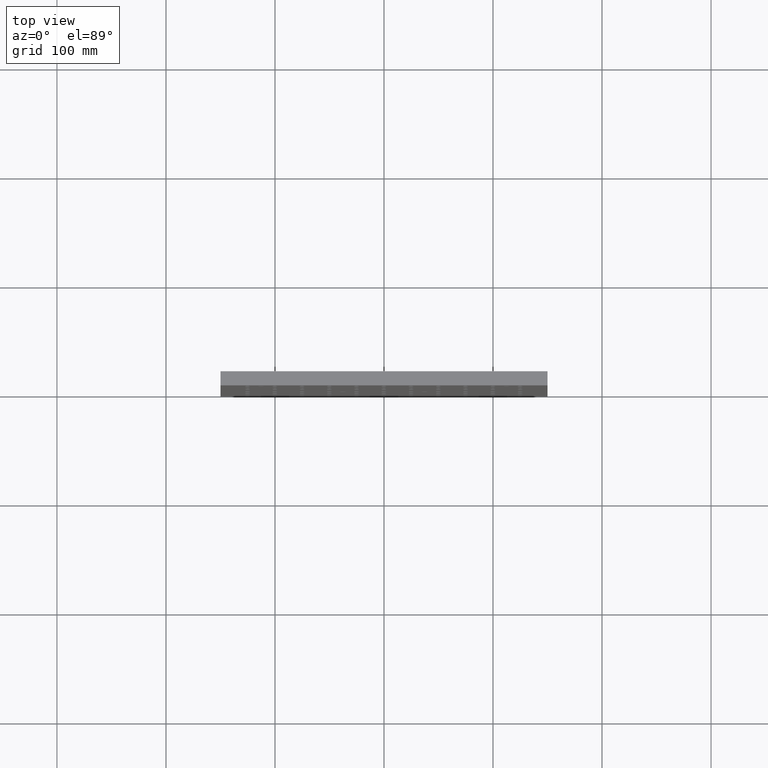
[diagram: clean part render]
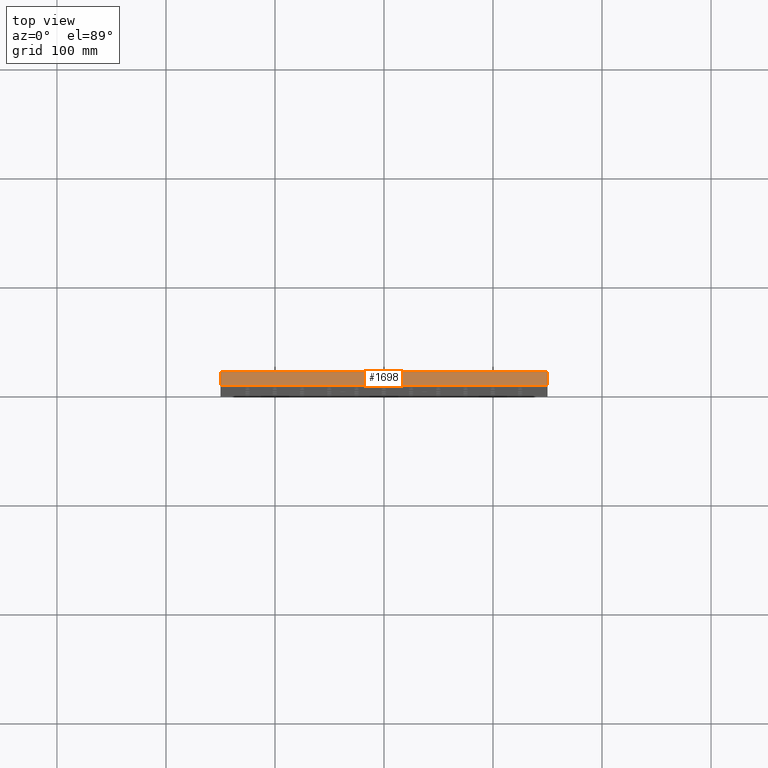
[diagram: same view with one face highlighted and labeled with its STEP entity id]
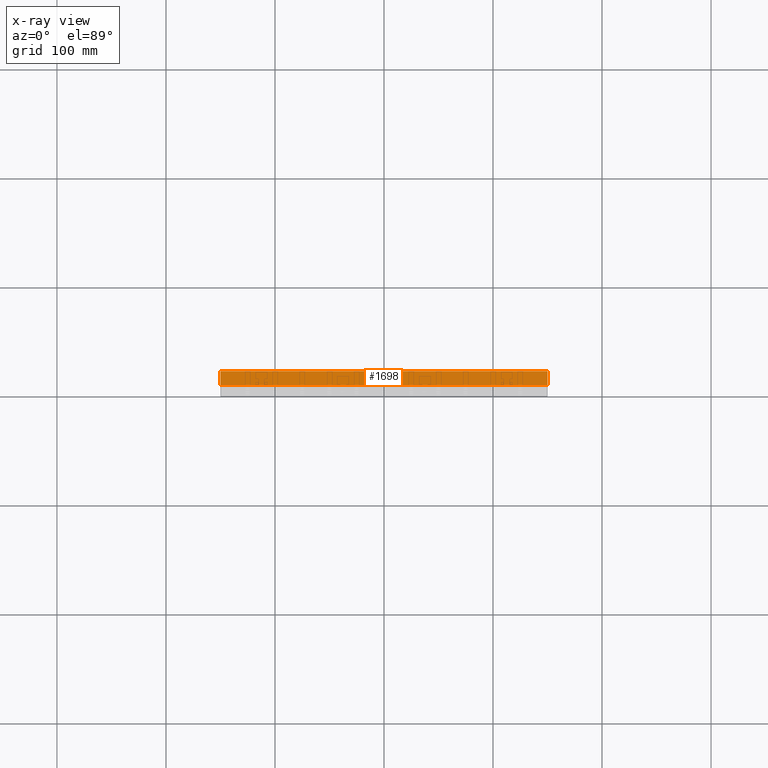
[diagram: x-ray of the same camera — body ghosted, the highlighted face saturated]
A machine part, top view. The second image highlights one B-rep face of the part: STEP entity #1698.
The next image is the same camera in x-ray: the body ghosted, the highlighted face saturated — about 0% of this face is hidden behind the body in this view.
In plain terms, the highlighted planar face has unit normal (0, 0, -1).
Its self-contained STEP definition (entity closure, byte-faithful):
#996 = CARTESIAN_POINT ( 'NONE',  ( -149.9999999999999147, 0.000000000000000000, 300.0000000000000568 ) ) ;
#1044 = FACE_OUTER_BOUND ( 'NONE', #3641, .T. ) ;
#1508 = EDGE_CURVE ( 'NONE', #5746, #3461, #2339, .T. ) ;
#1665 = EDGE_CURVE ( 'NONE', #8041, #5746, #6144, .T. ) ;
#1676 = ORIENTED_EDGE ( 'NONE', *, *, #1508, .T. ) ;
#1698 = ADVANCED_FACE ( 'NONE', ( #1044 ), #3950, .F. ) ;
#1842 = DIRECTION ( 'NONE',  ( 1.000000000000000000, 0.000000000000000000, -0.000000000000000000 ) ) ;
#2339 = LINE ( 'NONE', #5286, #9391 ) ;
#2815 = VECTOR ( 'NONE', #1842, 1000.000000000000000 ) ;
#3413 = CARTESIAN_POINT ( 'NONE',  ( 0.000000000000000000, 13.00000000000000178, 300.0000000000000568 ) ) ;
#3457 = VECTOR ( 'NONE', #7528, 1000.000000000000000 ) ;
#3461 = VERTEX_POINT ( 'NONE', #6965 ) ;
#3641 = EDGE_LOOP ( 'NONE', ( #1676, #5180, #5511, #6510 ) ) ;
#3950 = PLANE ( 'NONE',  #5904 ) ;
#5180 = ORIENTED_EDGE ( 'NONE', *, *, #5919, .F. ) ;
#5266 = DIRECTION ( 'NONE',  ( 0.000000000000000000, 1.000000000000000000, 0.000000000000000000 ) ) ;
#5286 = CARTESIAN_POINT ( 'NONE',  ( 150.0000000000000568, 13.00000000000000178, 300.0000000000000568 ) ) ;
#5511 = ORIENTED_EDGE ( 'NONE', *, *, #6184, .F. ) ;
#5517 = DIRECTION ( 'NONE',  ( 0.000000000000000000, 1.000000000000000000, -0.000000000000000000 ) ) ;
#5595 = LINE ( 'NONE', #3413, #2815 ) ;
#5746 = VERTEX_POINT ( 'NONE', #8990 ) ;
#5904 = AXIS2_PLACEMENT_3D ( 'NONE', #9052, #9284, #7052 ) ;
#5919 = EDGE_CURVE ( 'NONE', #7029, #3461, #5595, .T. ) ;
#6144 = LINE ( 'NONE', #996, #3457 ) ;
#6184 = EDGE_CURVE ( 'NONE', #8041, #7029, #8843, .T. ) ;
#6510 = ORIENTED_EDGE ( 'NONE', *, *, #1665, .T. ) ;
#6965 = CARTESIAN_POINT ( 'NONE',  ( 150.0000000000000568, 13.00000000000000178, 300.0000000000000568 ) ) ;
#7029 = VERTEX_POINT ( 'NONE', #8923 ) ;
#7052 = DIRECTION ( 'NONE',  ( -1.000000000000000000, 0.000000000000000000, -0.000000000000000000 ) ) ;
#7370 = CARTESIAN_POINT ( 'NONE',  ( -149.9999999999999147, 13.00000000000000178, 300.0000000000000568 ) ) ;
#7528 = DIRECTION ( 'NONE',  ( 1.000000000000000000, -0.000000000000000000, 0.000000000000000000 ) ) ;
#7648 = CARTESIAN_POINT ( 'NONE',  ( -149.9999999999999147, 0.000000000000000000, 300.0000000000000568 ) ) ;
#8041 = VERTEX_POINT ( 'NONE', #7648 ) ;
#8682 = VECTOR ( 'NONE', #5266, 1000.000000000000000 ) ;
#8843 = LINE ( 'NONE', #7370, #8682 ) ;
#8923 = CARTESIAN_POINT ( 'NONE',  ( -149.9999999999999716, 13.00000000000000178, 300.0000000000000568 ) ) ;
#8990 = CARTESIAN_POINT ( 'NONE',  ( 150.0000000000000284, 0.000000000000000000, 300.0000000000000568 ) ) ;
#9052 = CARTESIAN_POINT ( 'NONE',  ( -149.9999999999999147, 13.00000000000000178, 300.0000000000000568 ) ) ;
#9284 = DIRECTION ( 'NONE',  ( 0.000000000000000000, 0.000000000000000000, -1.000000000000000000 ) ) ;
#9391 = VECTOR ( 'NONE', #5517, 1000.000000000000000 ) ;